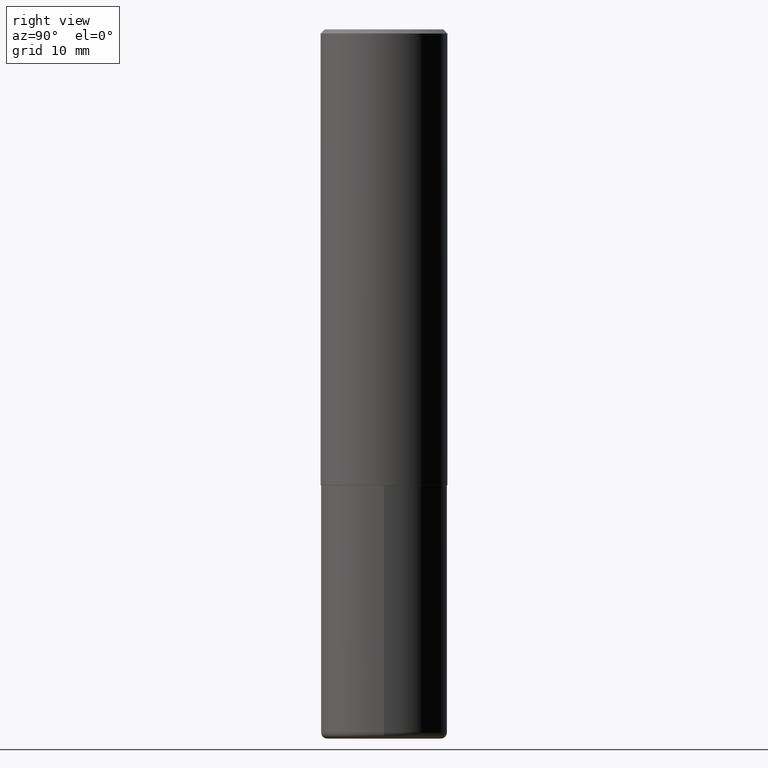
[diagram: clean part render]
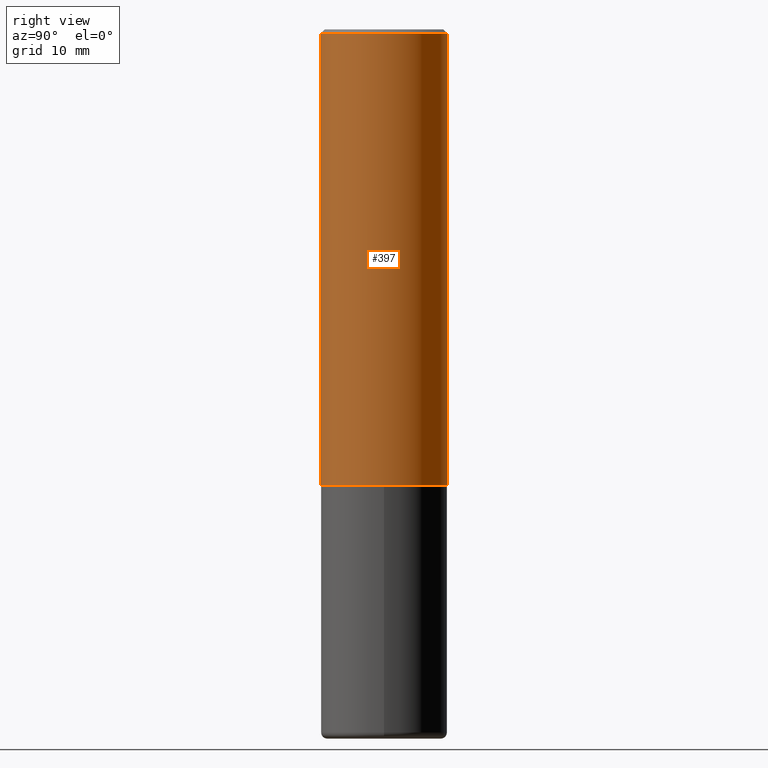
[diagram: same view with one face highlighted and labeled with its STEP entity id]
A machine part, right view. The second image highlights one B-rep face of the part: STEP entity #397.
In plain terms, the highlighted cylindrical surface (partial cylindrical patch) has radius 7.9375 mm, axis along (-0, 0, 1).
Its self-contained STEP definition (entity closure, byte-faithful):
#1 = CARTESIAN_POINT ( 'NONE',  ( -2.182175836776905099E-15, -0.3125000000000081601, -2.248999999999998334 ) ) ;
#9 = VERTEX_POINT ( 'NONE', #1 ) ;
#11 = DIRECTION ( 'NONE',  ( -2.446358674475855534E-29, 3.490206996802678235E-15, 1.000000000000000000 ) ) ;
#14 = DIRECTION ( 'NONE',  ( -2.446358674475855534E-29, 3.490206996802678235E-15, 1.000000000000000000 ) ) ;
#17 = CARTESIAN_POINT ( 'NONE',  ( 4.892717348951727429E-31, -6.980413993605380283E-17, -0.02000000000000006981 ) ) ;
#19 = DIRECTION ( 'NONE',  ( -2.446358674475855534E-29, 3.490206996802678235E-15, 1.000000000000000000 ) ) ;
#41 = VECTOR ( 'NONE', #19, 39.37007874015748143 ) ;
#46 = CARTESIAN_POINT ( 'NONE',  ( 5.501860658896197188E-29, -7.849475535809221324E-15, -2.248999999999999222 ) ) ;
#54 = DIRECTION ( 'NONE',  ( -2.446358674475855534E-29, 3.490206996802678235E-15, 1.000000000000000000 ) ) ;
#60 = LINE ( 'NONE', #256, #88 ) ;
#84 = CYLINDRICAL_SURFACE ( 'NONE', #133, 0.3125000000000001665 ) ;
#88 = VECTOR ( 'NONE', #54, 39.37007874015748143 ) ;
#107 = DIRECTION ( 'NONE',  ( -6.982962677686265922E-15, -1.000000000000000000, 3.496765431890253764E-15 ) ) ;
#121 = DIRECTION ( 'NONE',  ( -2.446358674475855534E-29, 3.490206996802678235E-15, 1.000000000000000000 ) ) ;
#133 = AXIS2_PLACEMENT_3D ( 'NONE', #213, #121, #351 ) ;
#159 = VERTEX_POINT ( 'NONE', #302 ) ;
#185 = LINE ( 'NONE', #320, #41 ) ;
#197 = EDGE_CURVE ( 'NONE', #253, #380, #235, .T. ) ;
#200 = AXIS2_PLACEMENT_3D ( 'NONE', #17, #14, #347 ) ;
#213 = CARTESIAN_POINT ( 'NONE',  ( 0.000000000000000000, 0.000000000000000000, 0.000000000000000000 ) ) ;
#220 = EDGE_LOOP ( 'NONE', ( #326, #398, #416, #359 ) ) ;
#221 = FACE_OUTER_BOUND ( 'NONE', #220, .T. ) ;
#233 = AXIS2_PLACEMENT_3D ( 'NONE', #46, #11, #107 ) ;
#235 = CIRCLE ( 'NONE', #200, 0.3125000000000000000 ) ;
#247 = EDGE_CURVE ( 'NONE', #9, #159, #343, .T. ) ;
#253 = VERTEX_POINT ( 'NONE', #346 ) ;
#256 = CARTESIAN_POINT ( 'NONE',  ( 2.220446049250313475E-15, 0.3125000000000001665, -1.090689686500837491E-15 ) ) ;
#302 = CARTESIAN_POINT ( 'NONE',  ( 2.220446049250341874E-15, 0.3124999999999924505, -2.249000000000000554 ) ) ;
#320 = CARTESIAN_POINT ( 'NONE',  ( -2.182175836776959136E-15, -0.3125000000000001665, 1.090689686500837491E-15 ) ) ;
#324 = EDGE_CURVE ( 'NONE', #9, #253, #185, .T. ) ;
#326 = ORIENTED_EDGE ( 'NONE', *, *, #247, .T. ) ;
#343 = CIRCLE ( 'NONE', #233, 0.3125000000000002776 ) ;
#346 = CARTESIAN_POINT ( 'NONE',  ( -2.143905624303602824E-15, -0.3125000000000000555, -0.01999999999999897693 ) ) ;
#347 = DIRECTION ( 'NONE',  ( -6.982962677686265133E-15, -1.000000000000000000, 3.496765431890256920E-15 ) ) ;
#351 = DIRECTION ( 'NONE',  ( -6.982962677686265133E-15, -1.000000000000000000, 3.490206996802678235E-15 ) ) ;
#359 = ORIENTED_EDGE ( 'NONE', *, *, #324, .F. ) ;
#380 = VERTEX_POINT ( 'NONE', #385 ) ;
#385 = CARTESIAN_POINT ( 'NONE',  ( 2.182175836776958741E-15, 0.3124999999999999445, -0.02000000000000116268 ) ) ;
#397 = ADVANCED_FACE ( 'NONE', ( #221 ), #84, .T. ) ;
#398 = ORIENTED_EDGE ( 'NONE', *, *, #399, .T. ) ;
#399 = EDGE_CURVE ( 'NONE', #159, #380, #60, .T. ) ;
#416 = ORIENTED_EDGE ( 'NONE', *, *, #197, .F. ) ;